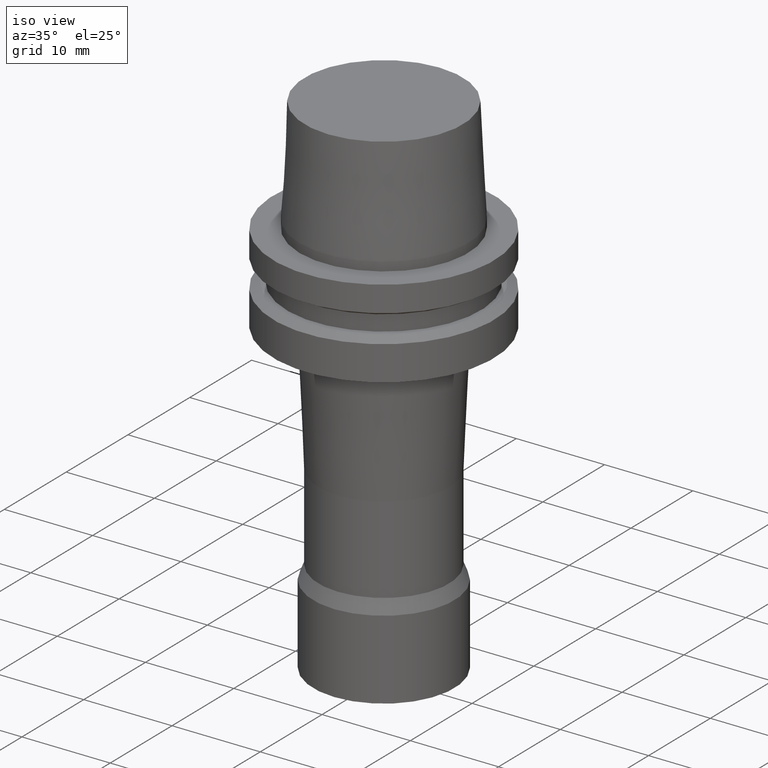
[diagram: clean part render]
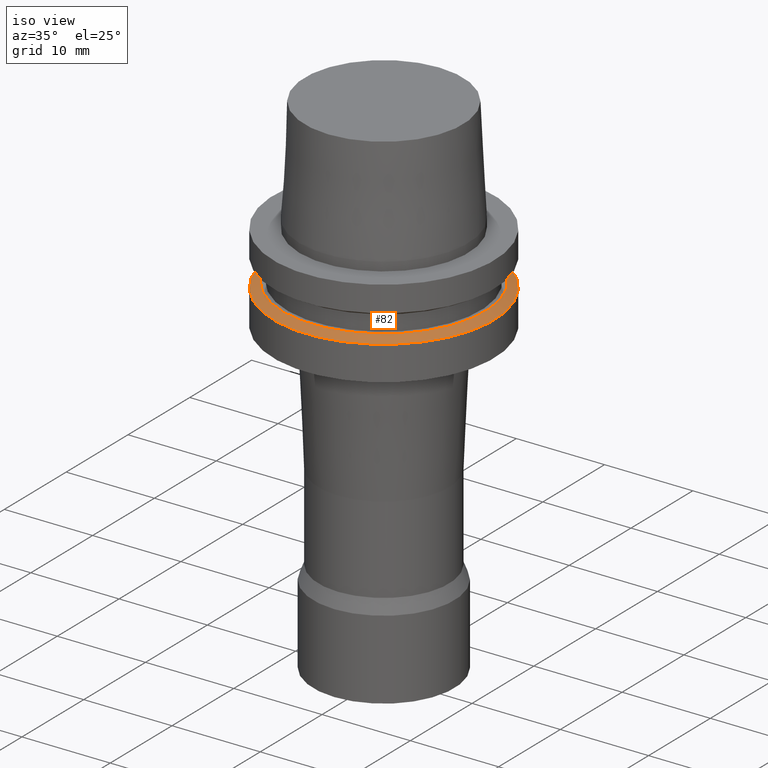
[diagram: same view with one face highlighted and labeled with its STEP entity id]
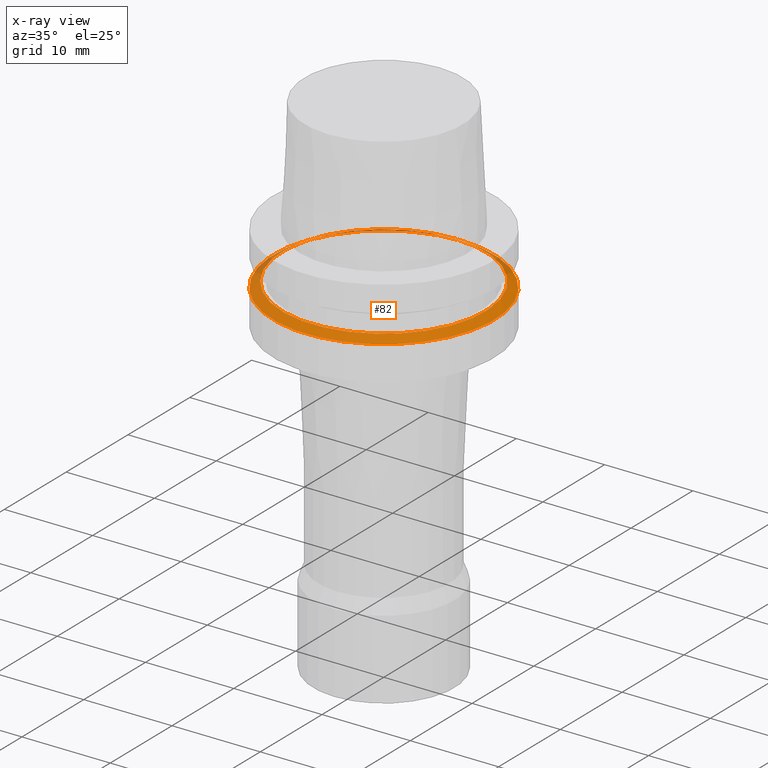
[diagram: x-ray of the same camera — body ghosted, the highlighted face saturated]
A machine part, iso view. The second image highlights one B-rep face of the part: STEP entity #82.
The next image is the same camera in x-ray: the body ghosted, the highlighted face saturated — about 11% of this face is hidden behind the body in this view.
In plain terms, the highlighted conical surface has half-angle 60 deg.
Its self-contained STEP definition (entity closure, byte-faithful):
#82=ADVANCED_FACE('',(#115,#116),#117,.T.);
#115=FACE_BOUND('',#167,.T.);
#116=FACE_BOUND('',#168,.T.);
#117=CONICAL_SURFACE('',#169,11.991025405,1.04719755036247);
#167=EDGE_LOOP('',(#233));
#168=EDGE_LOOP('',(#234));
#169=AXIS2_PLACEMENT_3D('',#235,#236,#237);
#233=ORIENTED_EDGE('',*,*,#294,.F.);
#234=ORIENTED_EDGE('',*,*,#293,.T.);
#235=CARTESIAN_POINT('',(3.54771398220085E-016,7.0954279644017E-016,-5.79385662));
#236=DIRECTION('',(6.12323399573677E-017,1.22464679914735E-016,-1.0));
#237=DIRECTION('',(-1.23259516440783E-032,1.0,1.22464679914735E-016));
#293=EDGE_CURVE('',#317,#317,#318,.T.);
#294=EDGE_CURVE('',#319,#319,#320,.T.);
#317=VERTEX_POINT('',#351);
#318=CIRCLE('',#352,11.48205081);
#319=VERTEX_POINT('',#353);
#320=CIRCLE('',#354,12.5);
#351=CARTESIAN_POINT('',(3.36777869765522E-016,11.48205081,-5.5));
#352=AXIS2_PLACEMENT_3D('',#392,#393,#394);
#353=CARTESIAN_POINT('',(3.72764926674648E-016,12.5,-6.08771324));
#354=AXIS2_PLACEMENT_3D('',#395,#396,#397);
#392=CARTESIAN_POINT('',(3.36777869765522E-016,6.73555739531044E-016,-5.5));
#393=DIRECTION('',(6.12323399573676E-017,1.22464679914735E-016,-1.0));
#394=DIRECTION('',(-1.23259516440783E-032,1.0,1.22464679914735E-016));
#395=CARTESIAN_POINT('',(3.72764926674648E-016,7.45529853349296E-016,-6.08771324));
#396=DIRECTION('',(6.12323399573677E-017,1.22464679914735E-016,-1.0));
#397=DIRECTION('',(-1.23259516440783E-032,1.0,1.22464679914735E-016));